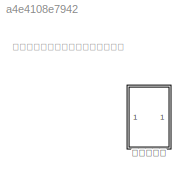
MODEL slx_a4e4108e7942
KIND model
CONFIG AbsTol = auto
CONFIG EnableMultiTasking = off
CONFIG FixedStep = auto
CONFIG MaxStep = auto
CONFIG MinStep = auto
CONFIG RelTol = 1e-3
CONFIG SampleTimeConstraint = Unconstrained
CONFIG Solver = VariableStepAuto
CONFIG SolverName = VariableStepAuto
CONFIG StartTime = 0.0
CONFIG StopTime = 10.0
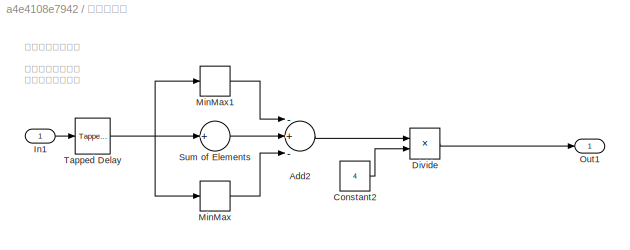
BLOCK [SubSystem] 均值滤波器
  Ports = [1, 1]
  RequestExecContextInheritance = off
BLOCK [Sum] 均值滤波器/Add2
  InputSameDT = off
  Inputs = -+-
  OutDataTypeStr = Inherit: Inherit via internal rule
  Ports = [3, 1]
  SaturateOnIntegerOverflow = off
BLOCK [Constant] 均值滤波器/Constant2
  OutDataTypeStr = uint8
  SampleTime = -1
  Value = 4
BLOCK [Product] 均值滤波器/Divide
  InputSameDT = off
  Inputs = */
  OutDataTypeStr = Inherit: Inherit via internal rule
  Ports = [2, 1]
  RndMeth = Floor
  SaturateOnIntegerOverflow = off
BLOCK [Inport] 均值滤波器/In1
  IconDisplay = Port number
BLOCK [MinMax] 均值滤波器/MinMax
  InputSameDT = off
  Ports = [1, 1]
  SaturateOnIntegerOverflow = off
BLOCK [MinMax] 均值滤波器/MinMax1
  Function = max
  InputSameDT = off
  Ports = [1, 1]
  SaturateOnIntegerOverflow = off
BLOCK [Outport] 均值滤波器/Out1
  IconDisplay = Port number
BLOCK [Sum] 均值滤波器/Sum of Elements
  InputSameDT = off
  Inputs = +
  OutDataTypeStr = Inherit: Inherit via internal rule
  Ports = [1, 1]
  SaturateOnIntegerOverflow = off
BLOCK [Reference] 均值滤波器/Tapped Delay  REF=simulink/Discrete/Tapped Delay
  Ports = [1, 1]
  SourceBlock = simulink/Discrete/Tapped Delay
  SourceProductBaseCode = SL
  SourceProductName = Simulink
  SourceType = Tapped Delay Line
ANNOTATION (root): 可用于过滤信号，提供较为稳定输出
ANNOTATION 均值滤波器: 设置过滤信号个数 过多则信号不线性 过少过滤效果不好
LINE 均值滤波器/Add2:1 -> 均值滤波器/Divide:1
LINE 均值滤波器/Constant2:1 -> 均值滤波器/Divide:2
LINE 均值滤波器/Divide:1 -> 均值滤波器/Out1:1
LINE 均值滤波器/In1:1 -> 均值滤波器/Tapped Delay:1
LINE 均值滤波器/MinMax1:1 -> 均值滤波器/Add2:1
LINE 均值滤波器/MinMax:1 -> 均值滤波器/Add2:3
LINE 均值滤波器/Sum of Elements:1 -> 均值滤波器/Add2:2
NET 均值滤波器/Tapped Delay:1 -> 均值滤波器/MinMax1:1, 均值滤波器/MinMax:1, 均值滤波器/Sum of Elements:1
note: NET lines group one-source signal fan-out (src -> all destinations, sorted); 1:1 wires keep LINE
